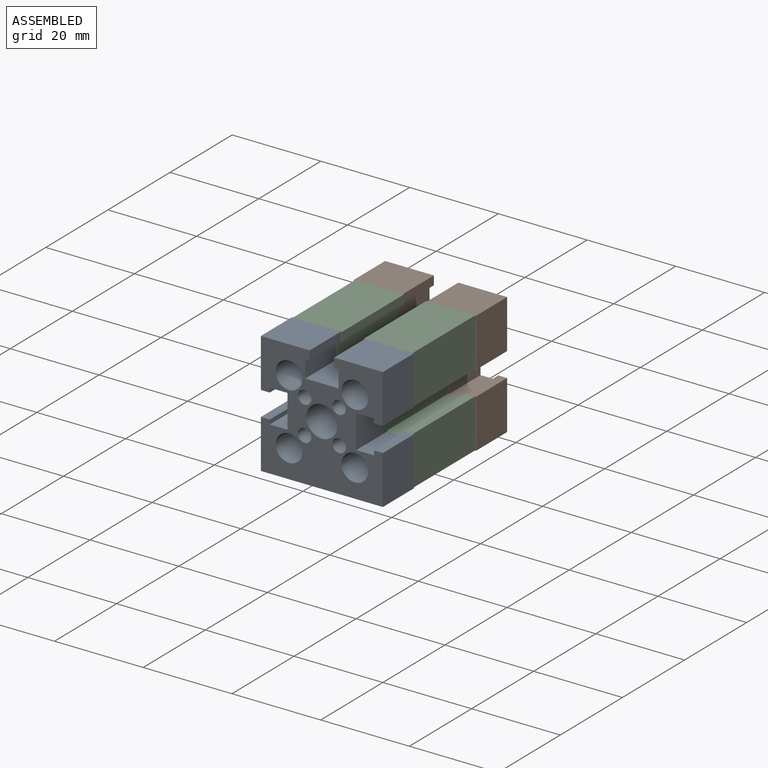
[diagram: assembled view]
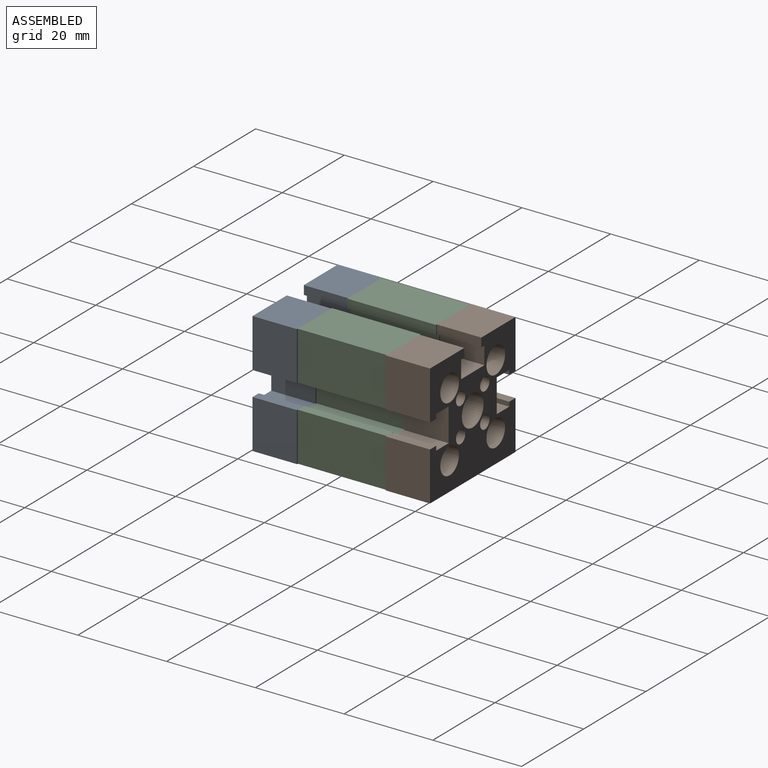
[diagram: assembled view, second angle]
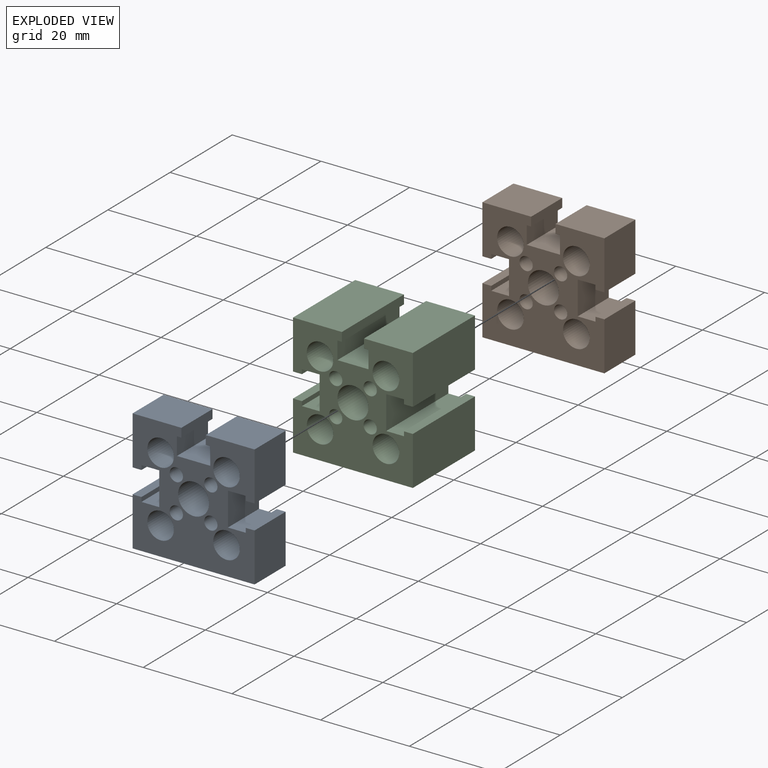
[diagram: exploded view]
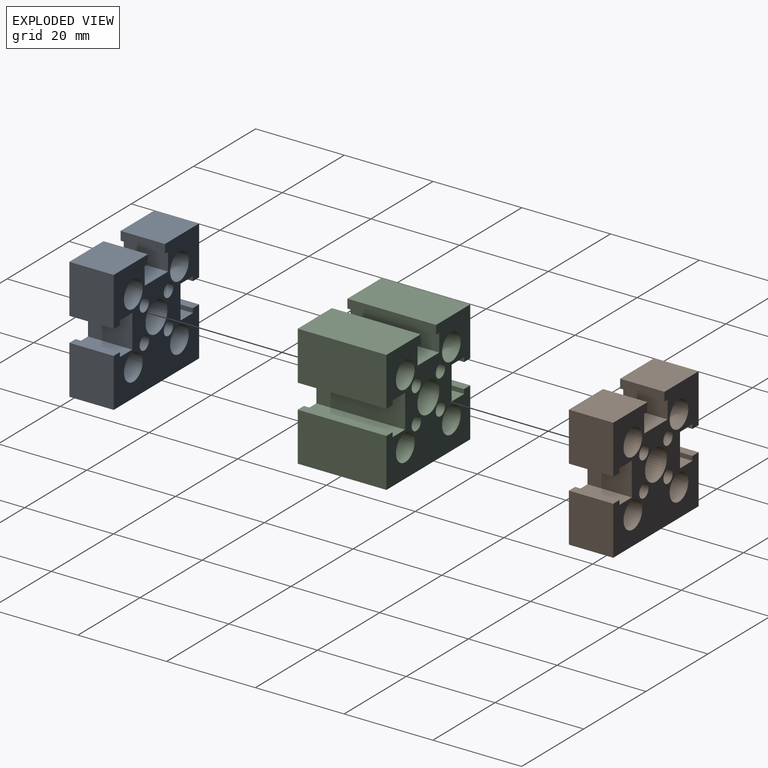
[diagram: exploded view, second angle]
ASSEMBLY  parts=3 mates=2
PART A: 39 faces, bbox 27.5x10x27.5 mm
  f0: plane 10x7.5mm, normal (0,0,1), area 75mm2, adj f1,f35,f37,f38
  f1: plane 10x4mm, normal (1,0,0), area 40mm2, adj f0,f2,f37,f38
  f2: plane 10x1mm, normal (0,0,-1), area 10mm2, adj f1,f3,f37,f38
  f3: plane 10x2mm, normal (1,0,0), area 20mm2, adj f2,f4,f37,f38
  f4: plane 11x10mm, normal (0,0,1), area 110mm2, adj f3,f5,f37,f38
  f5: plane 11x10mm, normal (-1,0,0), area 110mm2, adj f4,f6,f37,f38
  f6: plane 10x2mm, normal (0,0,-1), area 20mm2, adj f5,f7,f37,f38
  f7: plane 10x1mm, normal (1,0,0), area 10mm2, adj f6,f8,f37,f38
  f8: plane 10x4mm, normal (0,0,-1), area 40mm2, adj f7,f9,f37,f38
  f9: plane 10x7.5mm, normal (-1,0,0), area 75mm2, adj f8,f10,f37,f38
  f10: plane 10x4mm, normal (0,0,1), area 40mm2, adj f9,f11,f37,f38
  f11: plane 10x1mm, normal (1,0,0), area 10mm2, adj f10,f12,f37,f38
  f12: plane 10x2mm, normal (0,0,1), area 20mm2, adj f11,f13,f37,f38
  f13: plane 11x10mm, normal (-1,0,0), area 110mm2, adj f12,f14,f37,f38
  f14: plane 27.5x10mm, normal (0,0,-1), area 275mm2, adj f13,f15,f37,f38
  f15: plane 11x10mm, normal (1,0,0), area 110mm2, adj f14,f16,f37,f38
  f16: plane 10x2mm, normal (0,0,1), area 20mm2, adj f15,f17,f37,f38
  f17: plane 10x1mm, normal (-1,0,0), area 10mm2, adj f16,f18,f37,f38
  f18: plane 10x4mm, normal (0,0,1), area 40mm2, adj f17,f19,f37,f38
  f19: plane 10x7.5mm, normal (1,0,0), area 75mm2, adj f18,f20,f37,f38
  f20: plane 10x4mm, normal (0,0,-1), area 40mm2, adj f19,f21,f37,f38
  f21: plane 10x1mm, normal (-1,0,0), area 10mm2, adj f20,f22,f37,f38
  f22: plane 10x2mm, normal (0,0,-1), area 20mm2, adj f21,f23,f37,f38
  f23: plane 11x10mm, normal (1,0,0), area 110mm2, adj f22,f24,f37,f38
  f24: plane 11x10mm, normal (0,0,1), area 110mm2, adj f23,f25,f37,f38
  f25: plane 10x2mm, normal (-1,0,0), area 20mm2, adj f24,f26,f37,f38
  f26: plane 10x1mm, normal (0,0,-1), area 10mm2, adj f25,f35,f37,f38
  f27: cylinder r=3mm len=10mm, axis (0,1,0), area 188.5mm2, adj f37,f38
  f28: cylinder r=1.5mm len=10mm, axis (0,1,0), area 94.2mm2, adj f37,f38
  f29: cylinder r=1.5mm len=10mm, axis (0,1,0), area 94.2mm2, adj f37,f38
  f30: cylinder r=3mm len=10mm, axis (0,1,0), area 188.5mm2, adj f37,f38
  f31: cylinder r=1.5mm len=10mm, axis (0,1,0), area 94.2mm2, adj f37,f38
  f32: cylinder r=3mm len=10mm, axis (0,1,0), area 188.5mm2, adj f37,f38
  f33: cylinder r=1.5mm len=10mm, axis (0,1,0), area 94.2mm2, adj f37,f38
  f34: cylinder r=3.5mm len=10mm, axis (0,1,0), area 219.9mm2, adj f37,f38
  f35: plane 10x4mm, normal (-1,0,0), area 40mm2, adj f0,f26,f37,f38
  f36: cylinder r=3mm len=10mm, axis (0,1,0), area 188.5mm2, adj f37,f38
  f37: plane 27.5x27.5mm, normal (0,-1,0), area 453.4mm2, adj f0,f1,f2,f3,f4,f5,f6,f7
  f38: plane 27.5x27.5mm, normal (0,1,0), area 453.4mm2, adj f0,f1,f2,f3,f4,f5,f6,f7
PART B: same geometry as A
PART C: 39 faces, bbox 27x20x27.5 mm
  f0: plane 20x7mm, normal (0,0,1), area 140mm2, adj f1,f35,f37,f38
  f1: plane 20x4mm, normal (1,0,0), area 80mm2, adj f0,f2,f37,f38
  f2: plane 20x1mm, normal (0,0,-1), area 20mm2, adj f1,f3,f37,f38
  f3: plane 20x2mm, normal (1,0,0), area 40mm2, adj f2,f4,f37,f38
  f4: plane 20x11mm, normal (0,0,1), area 220mm2, adj f3,f5,f37,f38
  f5: plane 20x11mm, normal (-1,0,0), area 220mm2, adj f4,f6,f37,f38
  f6: plane 20x2mm, normal (0,0,-1), area 40mm2, adj f5,f7,f37,f38
  f7: plane 20x1mm, normal (1,0,0), area 20mm2, adj f6,f8,f37,f38
  f8: plane 20x4mm, normal (0,0,-1), area 80mm2, adj f7,f9,f37,f38
  f9: plane 20x7.5mm, normal (-1,0,0), area 150mm2, adj f8,f10,f37,f38
  f10: plane 20x4mm, normal (0,0,1), area 80mm2, adj f9,f11,f37,f38
  f11: plane 20x1mm, normal (1,0,0), area 20mm2, adj f10,f12,f37,f38
  f12: plane 20x2mm, normal (0,0,1), area 40mm2, adj f11,f13,f37,f38
  f13: plane 20x11mm, normal (-1,0,0), area 220mm2, adj f12,f14,f37,f38
  f14: plane 27x20mm, normal (0,0,-1), area 540mm2, adj f13,f15,f37,f38
  f15: plane 20x11mm, normal (1,0,0), area 220mm2, adj f14,f16,f37,f38
  f16: plane 20x2mm, normal (0,0,1), area 40mm2, adj f15,f17,f37,f38
  f17: plane 20x1mm, normal (-1,0,0), area 20mm2, adj f16,f18,f37,f38
  f18: plane 20x4mm, normal (0,0,1), area 80mm2, adj f17,f19,f37,f38
  f19: plane 20x7.5mm, normal (1,0,0), area 150mm2, adj f18,f20,f37,f38
  f20: plane 20x4mm, normal (0,0,-1), area 80mm2, adj f19,f21,f37,f38
  f21: plane 20x1mm, normal (-1,0,0), area 20mm2, adj f20,f22,f37,f38
  f22: plane 20x2mm, normal (0,0,-1), area 40mm2, adj f21,f23,f37,f38
  f23: plane 20x11mm, normal (1,0,0), area 220mm2, adj f22,f24,f37,f38
  f24: plane 20x11mm, normal (0,0,1), area 220mm2, adj f23,f25,f37,f38
  f25: plane 20x2mm, normal (-1,0,0), area 40mm2, adj f24,f26,f37,f38
  f26: plane 20x1mm, normal (0,0,-1), area 20mm2, adj f25,f35,f37,f38
  f27: cylinder r=3mm len=20mm, axis (0,1,0), area 377mm2, adj f37,f38
  f28: cylinder r=1.5mm len=20mm, axis (0,1,0), area 188.5mm2, adj f37,f38
  f29: cylinder r=1.5mm len=20mm, axis (0,1,0), area 188.5mm2, adj f37,f38
  f30: cylinder r=3mm len=20mm, axis (0,1,0), area 377mm2, adj f37,f38
  f31: cylinder r=1.5mm len=20mm, axis (0,1,0), area 188.5mm2, adj f37,f38
  f32: cylinder r=3mm len=20mm, axis (0,1,0), area 377mm2, adj f37,f38
  f33: cylinder r=1.5mm len=20mm, axis (0,1,0), area 188.5mm2, adj f37,f38
  f34: cylinder r=3.5mm len=20mm, axis (0,1,0), area 439.8mm2, adj f37,f38
  f35: plane 20x4mm, normal (-1,0,0), area 80mm2, adj f0,f26,f37,f38
  f36: cylinder r=3mm len=20mm, axis (0,1,0), area 377mm2, adj f37,f38
  f37: plane 27.5x27mm, normal (0,-1,0), area 442.6mm2, adj f0,f1,f2,f3,f4,f5,f6,f7
  f38: plane 27.5x27mm, normal (0,1,0), area 442.6mm2, adj f0,f1,f2,f3,f4,f5,f6,f7
PLACE A t=(63.34,11.31,-22.88)mm
PLACE B t=(63.34,41.31,-22.88)mm
PLACE C t=(49.84,31.31,-36.63)mm
MATE cylindrical A.f34 <-> C.f34  axis (0,1,0) through (63.34,11.31,-22.88)mm
MATE cylindrical B.f34 <-> C.f34  axis (0,1,0) through (63.34,31.31,-22.88)mm
